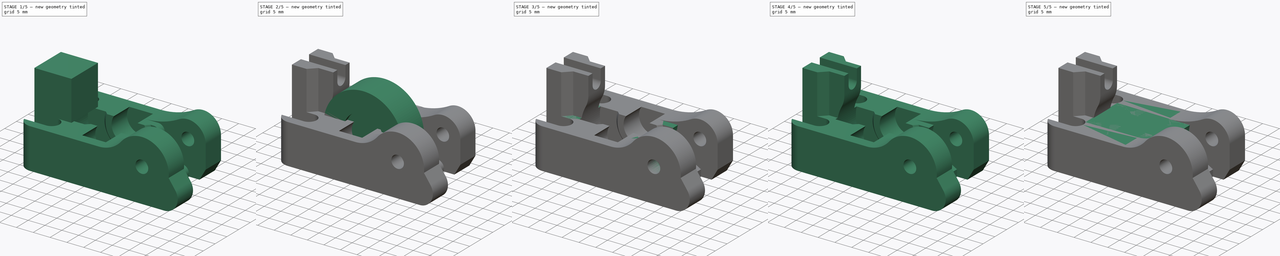
[diagram: build sequence overview — one tinted view per stage of 5, left to right]
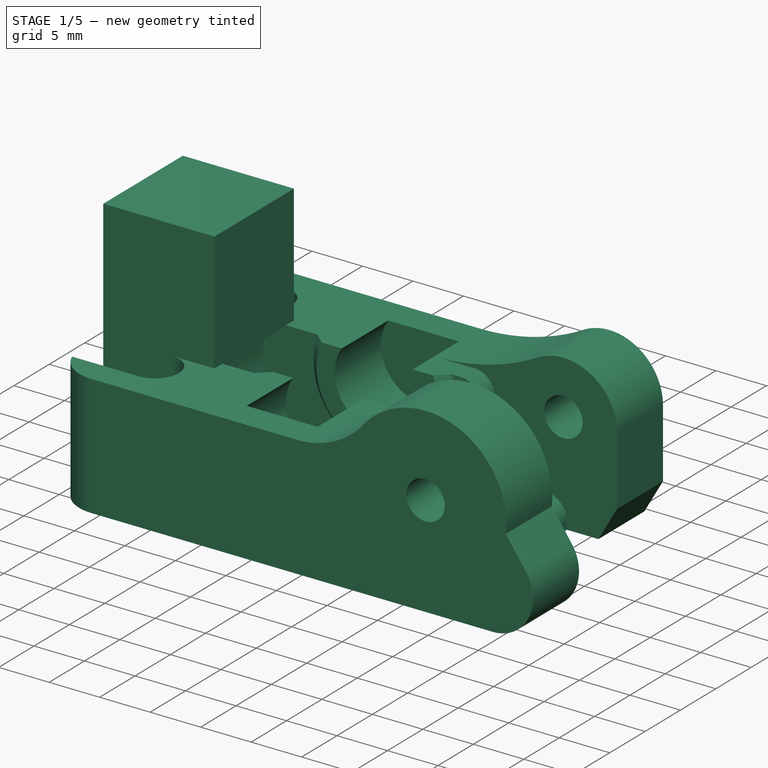
[diagram: stage 1 of 5 — iso view after this stage's code; geometry added in this stage tinted green]
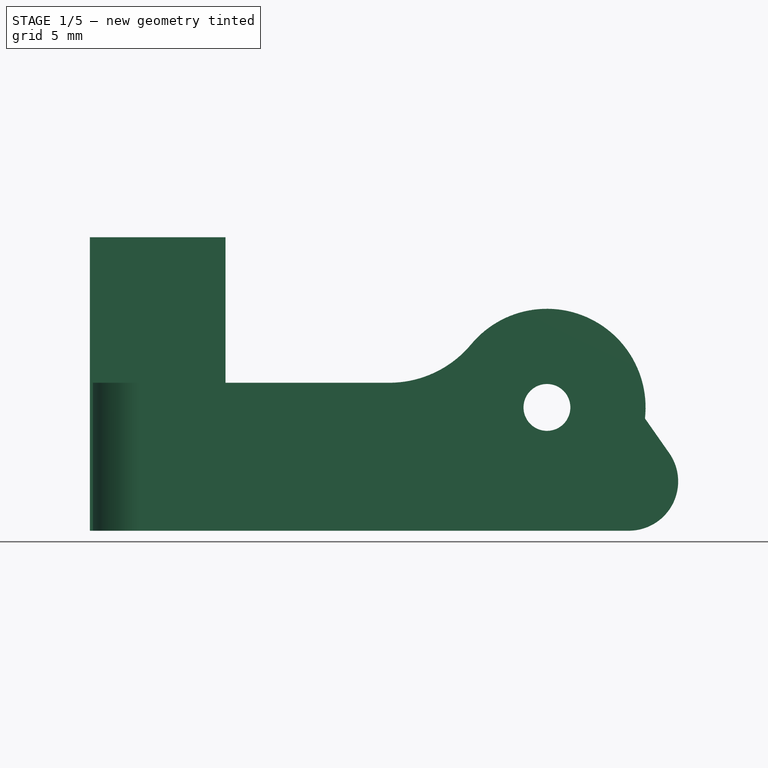
[diagram: stage 1 of 5 — front view after this stage's code; geometry added in this stage tinted green]
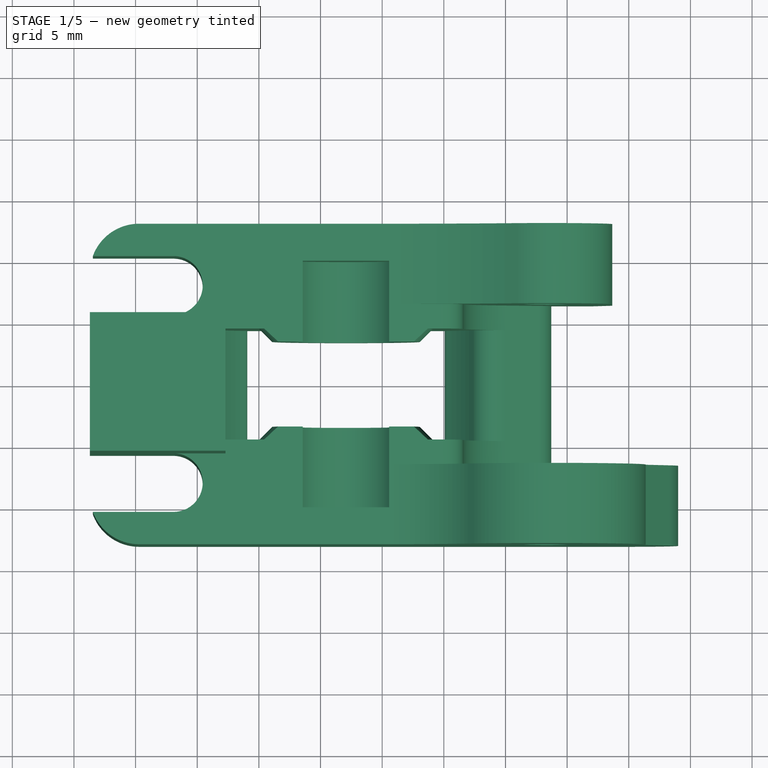
[diagram: stage 1 of 5 — top view after this stage's code; geometry added in this stage tinted green]
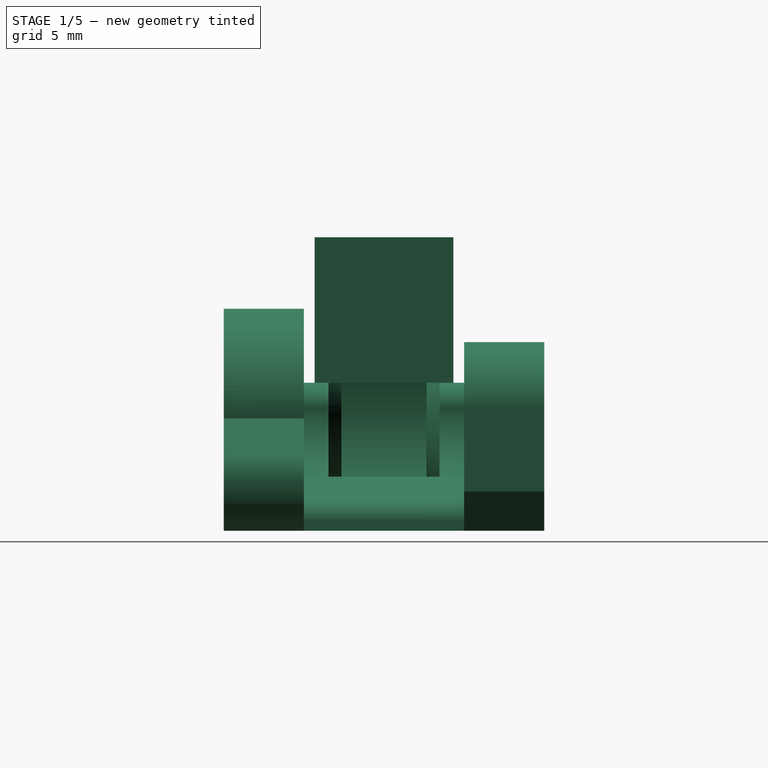
[diagram: stage 1 of 5 — right view after this stage's code; geometry added in this stage tinted green]
FCSTD DOCUMENT  (FreeCAD 0.16R6490 (Git))
Label: extruder_idler_block_v1.4
License: CC-BY 3.0
LicenseURL: http://creativecommons.org/licenses/by/3.0/
objects: Sketcher::SketchObject×18, PartDesign::Pad×11, PartDesign::Fillet×7, PartDesign::Pocket×6, Part::Feature×5, Part::Cut×3, PartDesign::Chamfer×2
note: 69 computed .brp shape members not serialized (recipe doc carries the construction recipe); baked Part::Feature solids carry a one-line shape summary decoded from their .brp

FEATURE [Part::Feature] Pad008001  label="Pad009"
  shape: bbox 45.07 x 26 x 18 mm, 48 faces (baked)
FEATURE [PartDesign::Fillet] Fillet003
  Base = -> Pad008001 [Edge41]
  Radius = 2
FEATURE [PartDesign::Fillet] Fillet004
  Base = -> Fillet003 [Edge18]
  Radius = 2
FEATURE [PartDesign::Fillet] Fillet005
  Base = -> Fillet004 [Edge45]
  Radius = 2
FEATURE [Sketcher::SketchObject] Sketch011
  ExternalGeometry = -> [Fillet005]
  Placement = pos=(0,-6.5,0) rot=(0,0.707107,0.707107;3.14159rad)
  Support = -> Fillet005 [Face14]
  sketch-geometry (13):
    g0: LineSegment [constr] StartX=-20.0379 StartY=12.9 StartZ=0 EndX=-16.6893 EndY=12.9 EndZ=0
    g1: LineSegment [constr] StartX=-16.6893 StartY=12.9 StartZ=0 EndX=-16.6893 EndY=7.1 EndZ=0
    g2: LineSegment StartX=-16.6893 StartY=7.1 StartZ=0 EndX=-20.0379 EndY=7.1 EndZ=0
    g3: LineSegment [constr] StartX=-20.0379 StartY=7.1 StartZ=0 EndX=-20.0379 EndY=12.9 EndZ=0
    g4: LineSegment StartX=-20.0379 StartY=12.9 StartZ=0 EndX=-21.7122 EndY=10 EndZ=0
    g5: LineSegment StartX=-21.7122 StartY=10 StartZ=0 EndX=-20.0379 EndY=7.1 EndZ=0
    g6: LineSegment StartX=-16.6893 StartY=12.9 StartZ=0 EndX=-15.015 EndY=10 EndZ=0
    g7: LineSegment StartX=-15.015 StartY=10 StartZ=0 EndX=-16.6893 EndY=7.1 EndZ=0
    g8: LineSegment [constr] StartX=-21.7122 StartY=10 StartZ=0 EndX=-15.015 EndY=10 EndZ=0
    g9: LineSegment [constr] StartX=-18.3636 StartY=10 StartZ=0 EndX=-18.3636 EndY=12.9 EndZ=0
    g10: LineSegment StartX=-20.0379 StartY=12.9 StartZ=0 EndX=-19.7492 EndY=13.4 EndZ=0
    g11: LineSegment StartX=-19.7492 StartY=13.4 StartZ=0 EndX=-16.9779 EndY=13.4 EndZ=0
    g12: LineSegment StartX=-16.9779 StartY=13.4 StartZ=0 EndX=-16.6893 EndY=12.9 EndZ=0
  constraints (36):
    c: Coincident(g0,g1)
    c: Coincident(g1,g2)
    c: Coincident(g2,g3)
    c: Coincident(g3,g0)
    c: Horizontal(g0)
    c: Horizontal(g2)
    c: Vertical(g1)
    c: Vertical(g3)
    c: Coincident(g4,g0)
    c: Coincident(g5,g4)
    c: Coincident(g5,g2)
    c: Coincident(g0,g6)
    c: Coincident(g6,g7)
    c: PointOnObject(g7,g2)
    c: Coincident(g8,g4)
    c: Coincident(g7,g1)
    c: Coincident(g8,g6)
    c: Horizontal(g8)
    c: Symmetric(g2,g0,g8)
    c: PointOnObject(g-3,g8)
    c: Angle(g5,g4) = 2.0944
    c: Parallel(g6,g5)
    c: Coincident(g9,g-3)
    c: PointOnObject(g9,g0)
    c: Vertical(g9)
    c: Symmetric(g0,g0,g9)
    c: DistanceY(g1) = -5.8
    c: Distance(g4,g1) = 5.8
    c: Coincident(g10,g0)
    c: Coincident(g11,g10)
    c: Horizontal(g11)
    c: Coincident(g12,g11)
    c: Coincident(g12,g0)
    c: Parallel(g10,g4)
    c: Parallel(g12,g6)
    c: DistanceY(g0,g10) = 0.5
FEATURE [PartDesign::Pocket] Pocket001002
  Length = 2.5
  Sketch = -> Sketch011
  Type = 0
FEATURE [Sketcher::SketchObject] Sketch012
  ExternalGeometry = -> [Pocket001002]
  Placement = pos=(0,0,12) rot=(0,0,1;0rad)
  Support = -> Pocket001002 [Face37]
  sketch-geometry (4):
    g0: LineSegment StartX=-18.71 StartY=5.625 StartZ=0 EndX=-7.71 EndY=5.625 EndZ=0
    g1: LineSegment StartX=-7.71 StartY=5.625 StartZ=0 EndX=-7.71 EndY=-5.625 EndZ=0
    g2: LineSegment StartX=-7.71 StartY=-5.625 StartZ=0 EndX=-18.71 EndY=-5.625 EndZ=0
    g3: LineSegment StartX=-18.71 StartY=-5.625 StartZ=0 EndX=-18.71 EndY=5.625 EndZ=0
  constraints (11):
    c: Coincident(g0,g1)
    c: Coincident(g1,g2)
    c: Coincident(g2,g3)
    c: Coincident(g3,g0)
    c: Horizontal(g0)
    c: Horizontal(g2)
    c: Vertical(g1)
    c: Vertical(g3)
    c: DistanceX(g0) = 11
    c: Coincident(g0,g-3)
    c: Coincident(g2,g-3)
FEATURE [PartDesign::Pad] Pad008002
  Length = 11.8
  Length2 = 100
  Sketch = -> Sketch012
  Type = 0
FEATURE [Part::Feature] Fillet006001  label="Fillet007"
  shape: bbox 45.07 x 26 x 23.8 mm, 71 faces (baked)
FEATURE [Sketcher::SketchObject] Sketch016
  ExternalGeometry = -> [Fillet006001]
  Placement = pos=(0,-13,0) rot=(1,0,0;1.5708rad)
  Support = -> Fillet006001 [Face44]
  sketch-geometry (5):
    g0: LineSegment StartX=26.3136 StartY=9.10691 StartZ=0 EndX=28.283 EndY=6.29431 EndZ=0
    g1: LineSegment StartX=21.8277 StartY=0 StartZ=0 EndX=25.0064 EndY=0 EndZ=0
    g2: ArcOfCircle CenterX=18.3636 CenterY=10 CenterZ=0 NormalX=0 NormalY=0 NormalZ=1 Radius=8 StartAngle=5.75958 EndAngle=6.17132
    g3: ArcOfCircle CenterX=25.0064 CenterY=4 CenterZ=0 NormalX=0 NormalY=0 NormalZ=1 Radius=4 StartAngle=4.71239 EndAngle=6.89405
    g4: LineSegment StartX=25.2918 StartY=5.99997 StartZ=0 EndX=21.8277 EndY=0 EndZ=0
  constraints (12):
    c: Coincident(g1,g-3)
    c: Horizontal(g1)
    c: Angle(g0,g1) = 0.959931
    c: Distance(g-4,g0) = 6
    c: Coincident(g2,g-4)
    c: Coincident(g2,g-4)
    c: Coincident(g2,g0)
    c: Tangent(g0,g3)
    c: Tangent(g1,g3)
    c: Radius(g3) = 4
    c: Coincident(g4,g2)
    c: Coincident(g4,g1)
FEATURE [PartDesign::Pad] Pad008003
  Length = 6.5
  Length2 = 100
  Reversed = true
  Sketch = -> Sketch016
  Type = 0
FEATURE [Part::Feature] Pad008003001  label="Pad008004"
  shape: bbox 47.72 x 26 x 23.8 mm, 72 faces (baked)
FEATURE [Sketcher::SketchObject] Sketch017
  ExternalGeometry = -> [Pad008003001]
  Placement = pos=(0,0,12) rot=(0,0,1;0rad)
  Support = -> Pad008003001 [Face4]
  sketch-geometry (4):
    g0: LineSegment StartX=-5.07307 StartY=3.8 StartZ=0 EndX=9.20307 EndY=3.8 EndZ=0
    g1: LineSegment StartX=9.20307 StartY=3.8 StartZ=0 EndX=9.20307 EndY=-3.8 EndZ=0
    g2: LineSegment StartX=9.20307 StartY=-3.8 StartZ=0 EndX=-5.07307 EndY=-3.8 EndZ=0
    g3: LineSegment StartX=-5.07307 StartY=-3.8 StartZ=0 EndX=-5.07307 EndY=3.8 EndZ=0
  constraints (12):
    c: Coincident(g0,g1)
    c: Coincident(g1,g2)
    c: Coincident(g2,g3)
    c: Coincident(g3,g0)
    c: Horizontal(g0)
    c: Horizontal(g2)
    c: Vertical(g1)
    c: Vertical(g3)
    c: DistanceY(g-8,g2) = -0.35
    c: DistanceY(g-7,g0) = 0.35
    c: DistanceX(g-3,g0) = -0.5
    c: DistanceX(g-6,g1) = 0.5
FEATURE [Part::Feature] Pad008003001001  label="Pad008005"
  shape: bbox 47.72 x 26 x 23.8 mm, 71 faces (baked)
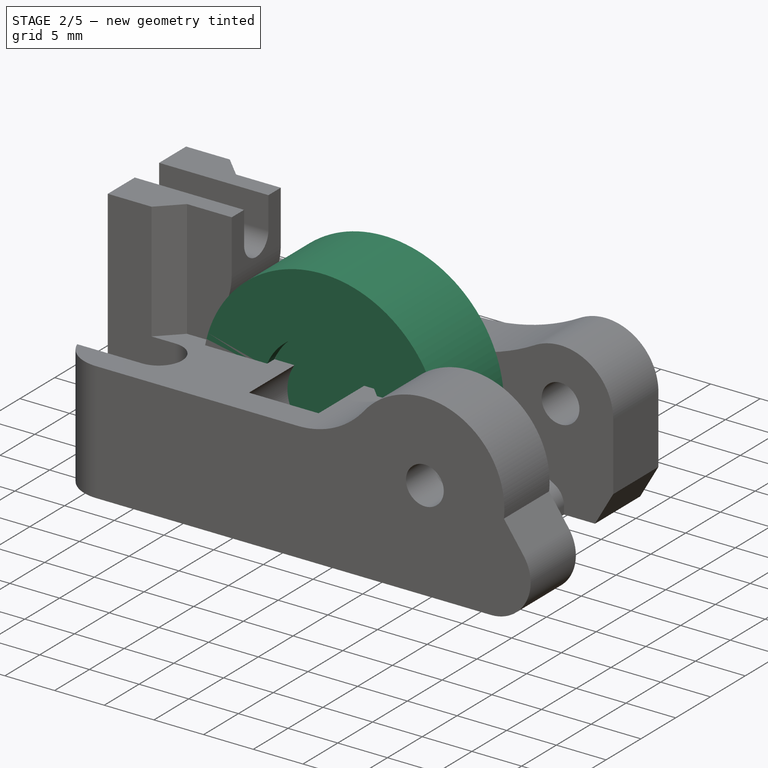
[diagram: stage 2 of 5 — iso view after this stage's code; geometry added in this stage tinted green]
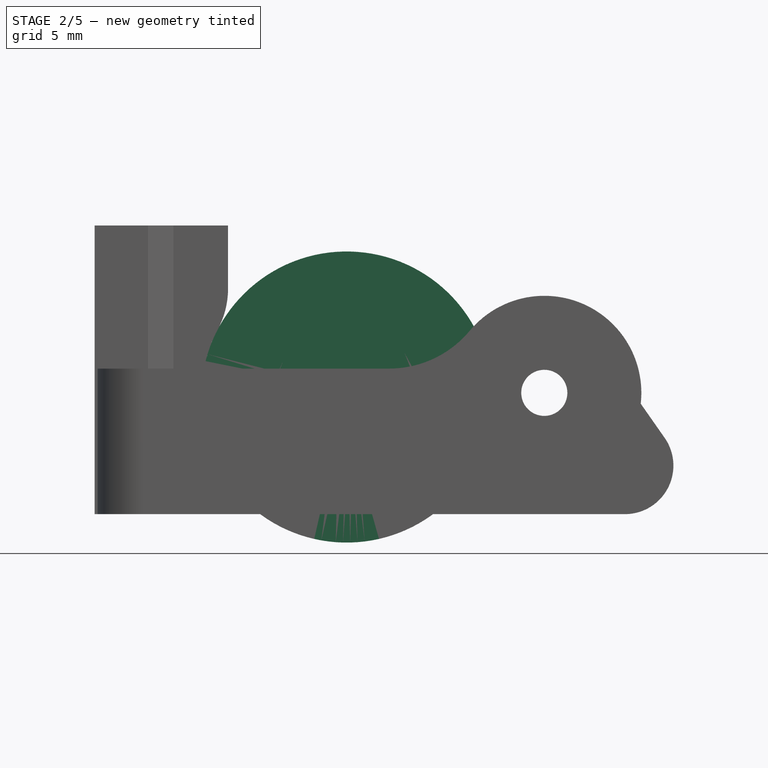
[diagram: stage 2 of 5 — front view after this stage's code; geometry added in this stage tinted green]
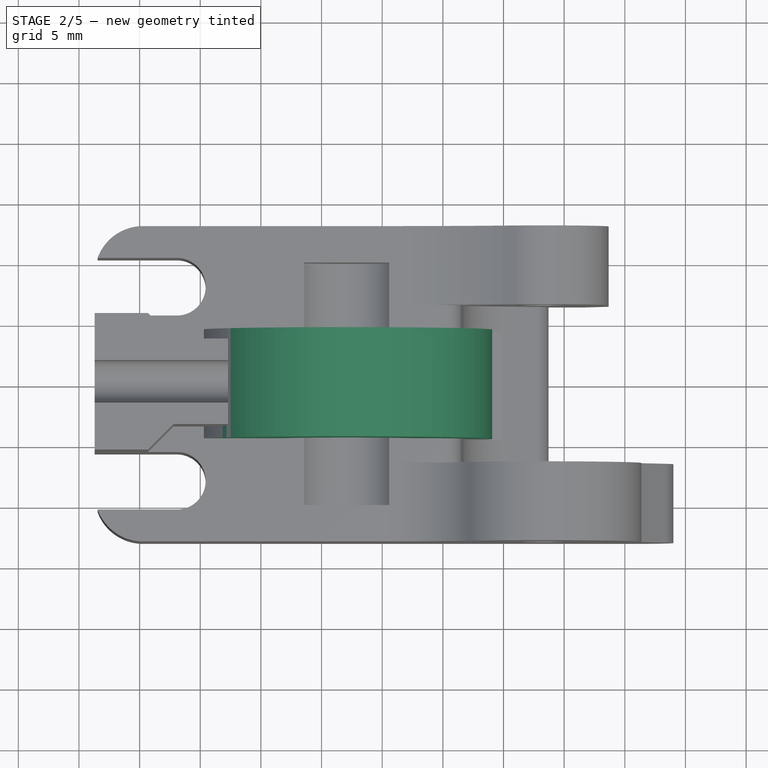
[diagram: stage 2 of 5 — top view after this stage's code; geometry added in this stage tinted green]
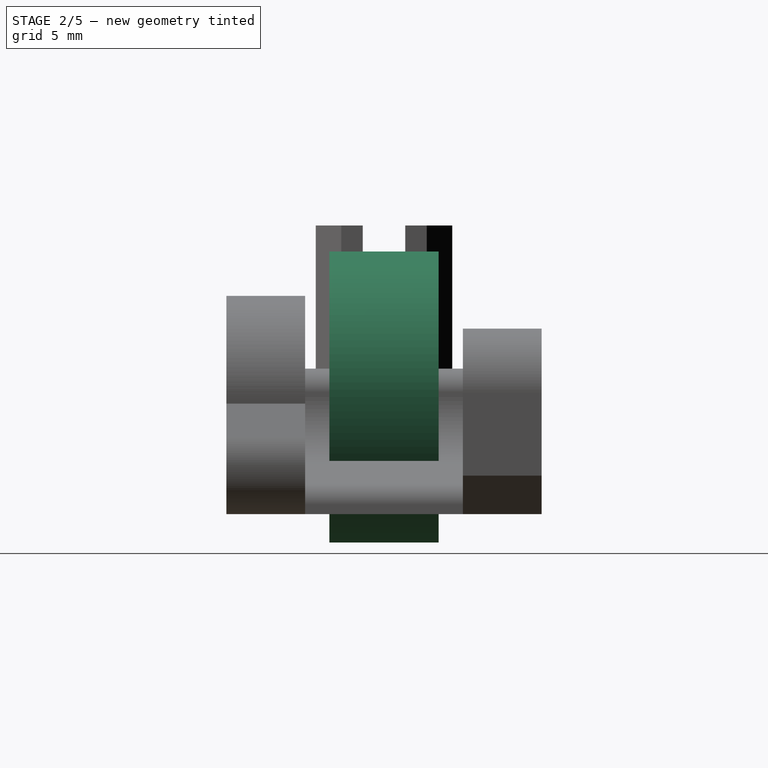
[diagram: stage 2 of 5 — right view after this stage's code; geometry added in this stage tinted green]
FEATURE [Sketcher::SketchObject] Sketch007
  Placement = pos=(0,0,0) rot=(1,0,0;1.5708rad)
  sketch-geometry (1):
    g0: Circle CenterX=2.065 CenterY=9.6553 CenterZ=0 NormalX=0 NormalY=0 NormalZ=1 Radius=6
  constraints (3):
    c: DistanceX(g-1,g0) = 2.065
    c: DistanceY(g0) = 9.6553
    c: Radius(g0) = 6
FEATURE [PartDesign::Pad] Pad005
  Length = 6.9
  Length2 = 100
  Midplane = true
  Placement = pos=(0,0,0) rot=(1,0,0;1.5708rad)
  Sketch = -> Sketch007
  Type = 0
FEATURE [Sketcher::SketchObject] Sketch008
  Placement = pos=(0,0,0) rot=(1,0,0;1.5708rad)
  sketch-geometry (2):
    g0: Circle CenterX=2.065 CenterY=9.6553 CenterZ=0 NormalX=0 NormalY=0 NormalZ=1 Radius=6
    g1: Circle CenterX=2.065 CenterY=9.6553 CenterZ=0 NormalX=0 NormalY=0 NormalZ=1 Radius=12
  constraints (5):
    c: DistanceX(g-1,g0) = 2.065
    c: DistanceY(g0) = 9.6553
    c: Radius(g0) = 6
    c: Coincident(g1,g0)
    c: Radius(g1) = 12
FEATURE [PartDesign::Pad] Pad006
  Length = 9
  Length2 = 100
  Midplane = true
  Placement = pos=(0,0,0) rot=(1,0,0;1.5708rad)
  Sketch = -> Sketch008
  Type = 0
FEATURE [Sketcher::SketchObject] Sketch013
  ExternalGeometry = -> [Pad008002]
  Placement = pos=(-18.71,0,0) rot=(0.57735,-0.57735,-0.57735;2.0944rad)
  Support = -> Pad008002 [Face57]
  sketch-geometry (5):
    g0: LineSegment StartX=-1.75 StartY=23.8 StartZ=0 EndX=1.75 EndY=23.8 EndZ=0
    g1: LineSegment StartX=1.75 StartY=23.8 StartZ=0 EndX=1.75 EndY=20.6 EndZ=0
    g2: LineSegment [constr] StartX=1.75 StartY=20.6 StartZ=0 EndX=-1.75 EndY=20.6 EndZ=0
    g3: LineSegment StartX=-1.75 StartY=20.6 StartZ=0 EndX=-1.75 EndY=23.8 EndZ=0
    g4: ArcOfCircle CenterX=0 CenterY=20.6 CenterZ=0 NormalX=0 NormalY=0 NormalZ=1 Radius=1.75 StartAngle=3.14159 EndAngle=6.28319
  constraints (15):
    c: Coincident(g0,g1)
    c: Coincident(g1,g2)
    c: Coincident(g2,g3)
    c: Coincident(g3,g0)
    c: Horizontal(g0)
    c: Horizontal(g2)
    c: Vertical(g1)
    c: Vertical(g3)
    c: Coincident(g4,g1)
    c: Coincident(g4,g2)
    c: DistanceX(g0) = 3.5
    c: DistanceY(g3) = 3.2
    c: PointOnObject(g0,g-3)
    c: Symmetric(g0,g0,g-2)
    c: PointOnObject(g4,g2)
FEATURE [PartDesign::Pocket] Pocket001003
  Length = 5
  Sketch = -> Sketch013
  Type = 1
FEATURE [Sketcher::SketchObject] Sketch014
  ExternalGeometry = -> [Pocket001003]
  Placement = pos=(0,0,23.8) rot=(0,0,1;0rad)
  Support = -> Pocket001003 [Face67]
  sketch-geometry (12):
    g0: LineSegment StartX=-7.71 StartY=5.625 StartZ=0 EndX=-12.21 EndY=5.625 EndZ=0
    g1: LineSegment [constr] StartX=-12.21 StartY=5.625 StartZ=0 EndX=-12.21 EndY=3.525 EndZ=0
    g2: LineSegment StartX=-12.21 StartY=3.525 StartZ=0 EndX=-7.71 EndY=3.525 EndZ=0
    g3: LineSegment StartX=-7.71 StartY=3.525 StartZ=0 EndX=-7.71 EndY=5.625 EndZ=0
    g4: LineSegment StartX=-7.71 StartY=-5.625 StartZ=0 EndX=-12.21 EndY=-5.625 EndZ=0
    g5: LineSegment [constr] StartX=-12.21 StartY=-5.625 StartZ=0 EndX=-12.21 EndY=-3.525 EndZ=0
    g6: LineSegment StartX=-12.21 StartY=-3.525 StartZ=0 EndX=-7.71 EndY=-3.525 EndZ=0
    g7: LineSegment StartX=-7.71 StartY=-3.525 StartZ=0 EndX=-7.71 EndY=-5.625 EndZ=0
    g8: LineSegment StartX=-12.21 StartY=3.525 StartZ=0 EndX=-14.31 EndY=5.625 EndZ=0
    g9: LineSegment StartX=-14.31 StartY=5.625 StartZ=0 EndX=-12.21 EndY=5.625 EndZ=0
    g10: LineSegment StartX=-12.21 StartY=-3.525 StartZ=0 EndX=-14.31 EndY=-5.625 EndZ=0
    g11: LineSegment StartX=-14.31 StartY=-5.625 StartZ=0 EndX=-12.21 EndY=-5.625 EndZ=0
  constraints (32):
    c: Coincident(g0,g1)
    c: Coincident(g1,g2)
    c: Coincident(g2,g3)
    c: Coincident(g3,g0)
    c: Horizontal(g0)
    c: Horizontal(g2)
    c: Vertical(g1)
    c: Vertical(g3)
    c: Coincident(g0,g-3)
    c: Coincident(g4,g5)
    c: Coincident(g5,g6)
    c: Coincident(g6,g7)
    c: Coincident(g7,g4)
    c: Horizontal(g4)
    c: Horizontal(g6)
    c: Vertical(g5)
    c: Vertical(g7)
    c: Coincident(g4,g-4)
    c: PointOnObject(g1,g5)
    c: Coincident(g8,g1)
    c: Coincident(g9,g8)
    c: Coincident(g9,g0)
    c: Horizontal(g9)
    c: Angle(g1,g8) = 0.785398
    c: Coincident(g10,g5)
    c: Coincident(g11,g10)
    c: Coincident(g11,g4)
    c: Horizontal(g11)
    c: Angle(g10,g5) = 0.785398
    c: DistanceX(g0,g-5) = -6.5
    c: DistanceY(g1) = -2.1
    c: DistanceY(g5) = 2.1
FEATURE [PartDesign::Pocket] Pocket001004
  Length = 11.8
  Sketch = -> Sketch014
  Type = 0
FEATURE [Sketcher::SketchObject] Sketch015
  ExternalGeometry = -> [Pocket001004]
  Placement = pos=(0,-3.525,0) rot=(1,0,0;1.5708rad)
  Support = -> Pocket001004 [Face70]
  sketch-geometry (4):
    g0: ArcOfCircle [constr] CenterX=2.065 CenterY=9.6553 CenterZ=0 NormalX=0 NormalY=0 NormalZ=1 Radius=12 StartAngle=2.52281 EndAngle=3.96347
    g1: LineSegment StartX=-7.71 StartY=16.6159 StartZ=0 EndX=-7.71 EndY=12 EndZ=0
    g2: LineSegment StartX=-9.7037 StartY=12 StartZ=0 EndX=-7.71 EndY=12 EndZ=0
    g3: ArcOfCircle CenterX=2.065 CenterY=9.6553 CenterZ=0 NormalX=0 NormalY=0 NormalZ=1 Radius=12 StartAngle=2.52281 EndAngle=2.94494
  constraints (12):
    c: Coincident(g0,g-3)
    c: PointOnObject(g-5,g0)
    c: Radius(g0) = 12
    c: Vertical(g1)
    c: Coincident(g0,g1)
    c: Coincident(g2,g-5)
    c: Coincident(g2,g1)
    c: Horizontal(g2)
    c: PointOnObject(g-6,g1)
    c: Coincident(g3,g0)
    c: Coincident(g3,g2)
    c: Coincident(g3,g0)
FEATURE [PartDesign::Pocket] Pocket001005
  Length = 8
  Sketch = -> Sketch015
  Type = 0
FEATURE [PartDesign::Fillet] Fillet006
  Base = -> Pocket001005 [Edge208]
  Radius = 7
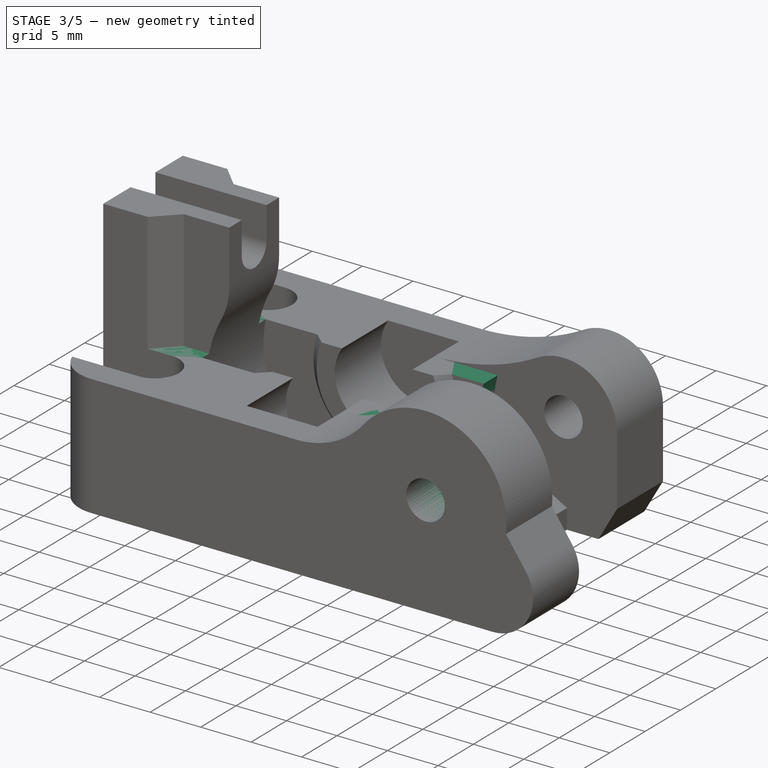
[diagram: stage 3 of 5 — iso view after this stage's code; geometry added in this stage tinted green]
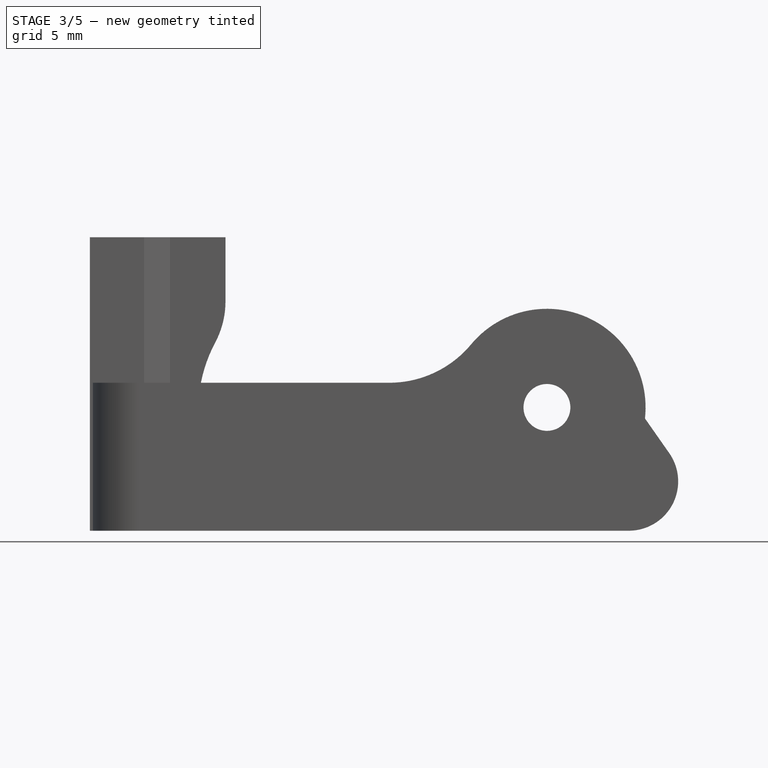
[diagram: stage 3 of 5 — front view after this stage's code; geometry added in this stage tinted green]
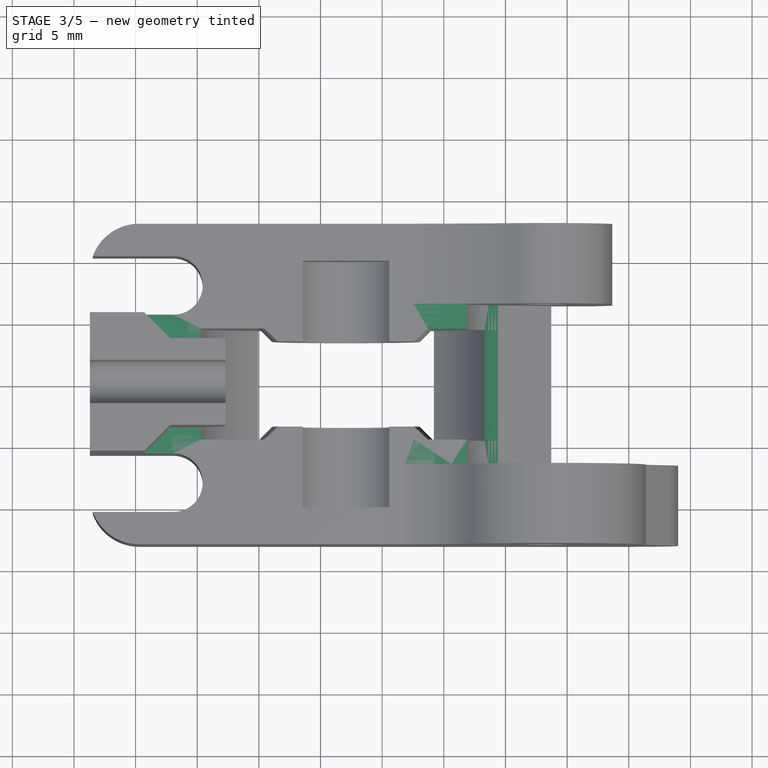
[diagram: stage 3 of 5 — top view after this stage's code; geometry added in this stage tinted green]
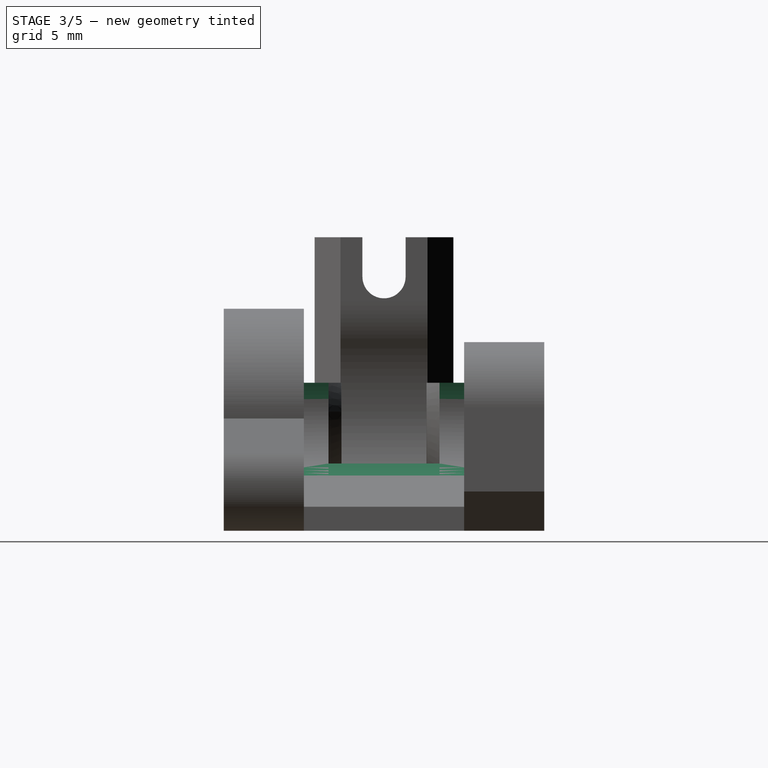
[diagram: stage 3 of 5 — right view after this stage's code; geometry added in this stage tinted green]
FEATURE [Part::Feature] Pocket001001  label="Pocket002"
  shape: bbox 45.07 x 26 x 18 mm, 25 faces (baked)
FEATURE [Sketcher::SketchObject] Sketch006
  Placement = pos=(0,0,0) rot=(1,0,0;1.5708rad)
  sketch-geometry (1):
    g0: Circle CenterX=2.065 CenterY=9.6553 CenterZ=0 NormalX=0 NormalY=0 NormalZ=1 Radius=4.2155
  constraints (3):
    c: Radius(g0) = 4.2155
    c: DistanceX(g-1,g0) = 2.065
    c: DistanceY(g0) = 9.6553
FEATURE [PartDesign::Pad] Pad004
  Length = 20
  Length2 = 100
  Midplane = true
  Placement = pos=(0,0,0) rot=(1,0,0;1.5708rad)
  Sketch = -> Sketch006
  Type = 0
FEATURE [Part::Cut] Cut
  Base = -> Pocket001001
  Tool = -> Pad004
FEATURE [Part::Cut] Cut001
  Base = -> Cut
  Tool = -> Pad005
FEATURE [Part::Cut] Cut002
  Base = -> Cut001
  Tool = -> Pad006
FEATURE [PartDesign::Chamfer] Chamfer
  Base = -> Cut002 [Edge91]
  Size = 1.04
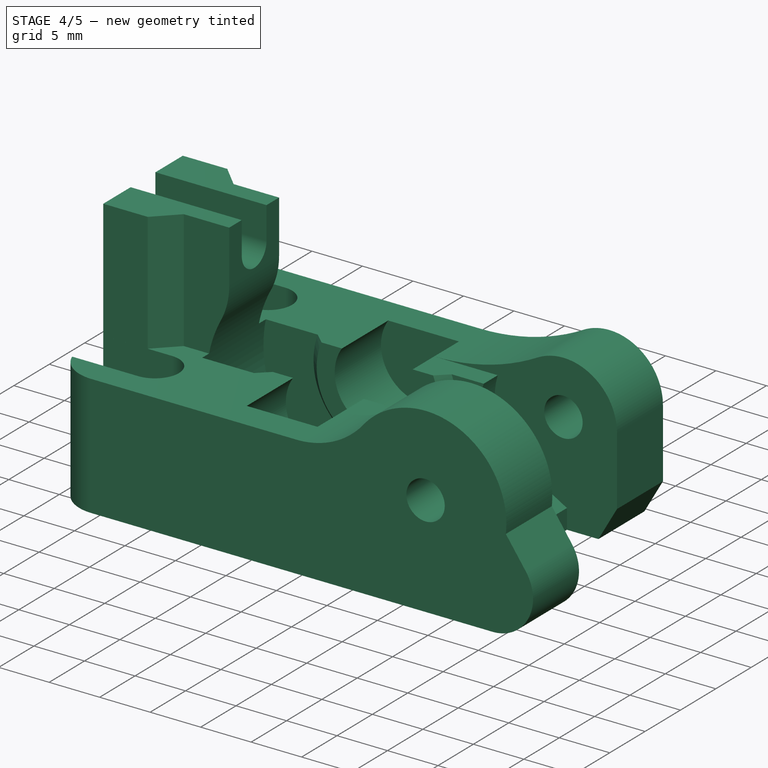
[diagram: stage 4 of 5 — iso view after this stage's code; geometry added in this stage tinted green]
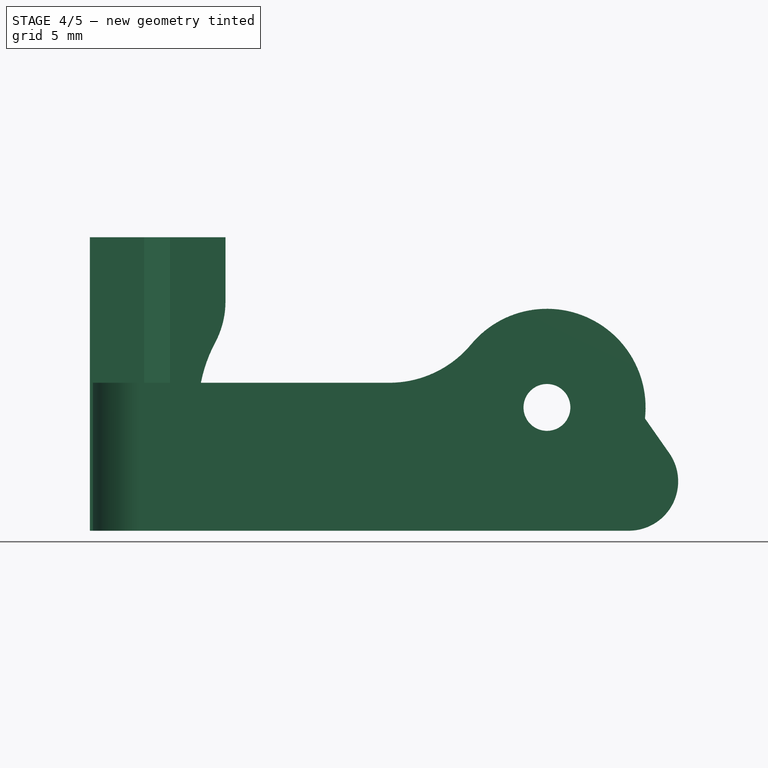
[diagram: stage 4 of 5 — front view after this stage's code; geometry added in this stage tinted green]
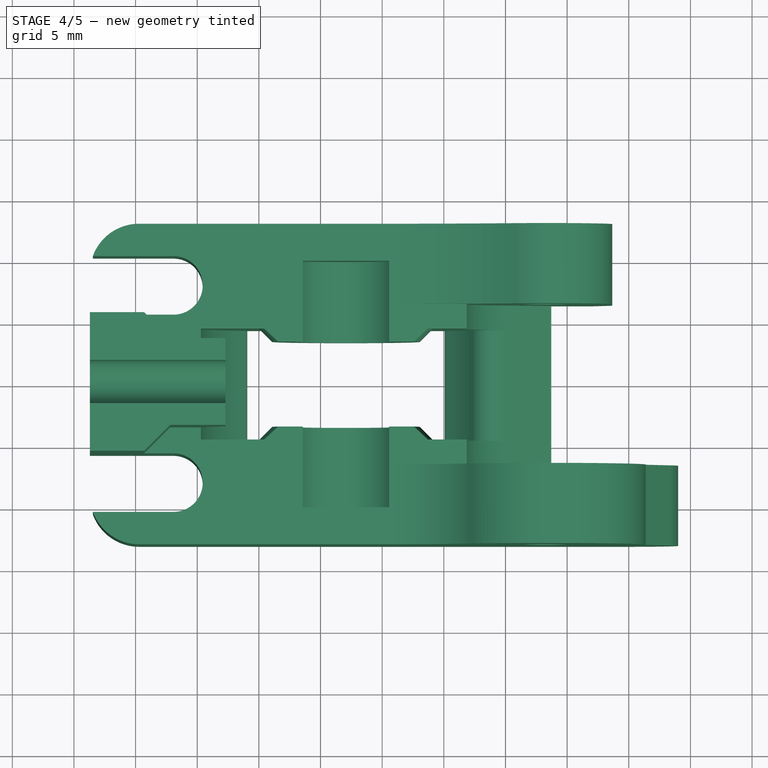
[diagram: stage 4 of 5 — top view after this stage's code; geometry added in this stage tinted green]
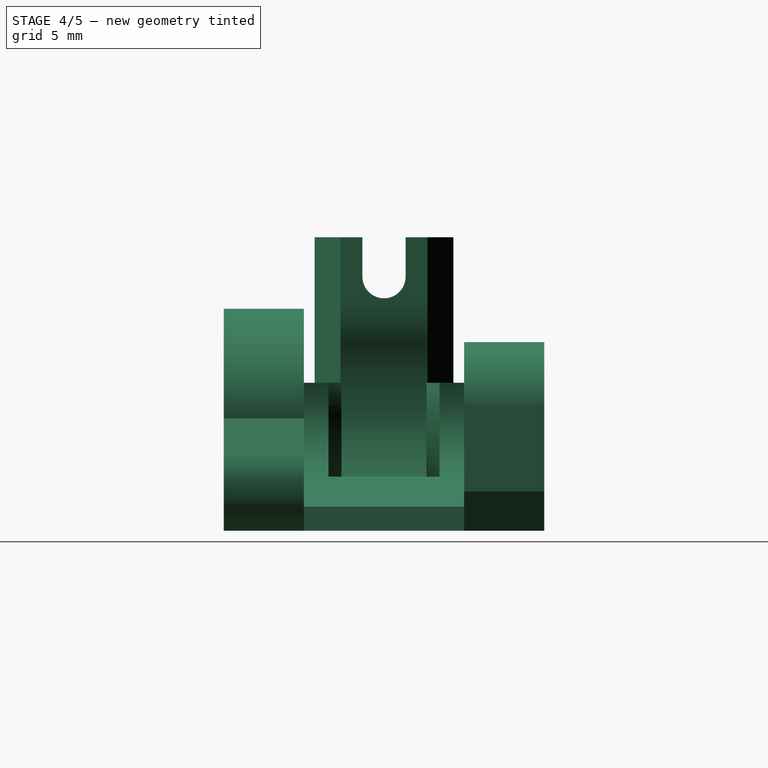
[diagram: stage 4 of 5 — right view after this stage's code; geometry added in this stage tinted green]
FEATURE [PartDesign::Chamfer] Chamfer001
  Base = -> Chamfer [Edge96]
  Size = 1.04
FEATURE [PartDesign::Fillet] Fillet
  Base = -> Chamfer001 [Edge76]
  Radius = 1.9
FEATURE [PartDesign::Fillet] Fillet001
  Base = -> Fillet [Edge16]
  Radius = 0.5
FEATURE [PartDesign::Fillet] Fillet002
  Base = -> Fillet001 [Edge55]
  Radius = 0.5
FEATURE [Sketcher::SketchObject] Sketch009
  ExternalGeometry = -> [Fillet002]
  Placement = pos=(0,-13,0) rot=(1,0,0;1.5708rad)
  Support = -> Fillet002 [Face25]
  sketch-geometry (3):
    g0: ArcOfCircle CenterX=5.56825 CenterY=20.6434 CenterZ=0 NormalX=0 NormalY=0 NormalZ=1 Radius=8.6434 StartAngle=4.71239 EndAngle=5.58934
    g1: LineSegment StartX=5.56826 StartY=12 StartZ=0 EndX=10.6176 EndY=12 EndZ=0
    g2: LineSegment StartX=12.2132 StartY=15.116 StartZ=0 EndX=10.6176 EndY=12 EndZ=0
  constraints (7):
    c: Coincident(g0,g-3)
    c: Tangent(g0,g-4)
    c: Tangent(g0,g-5)
    c: Coincident(g1,g0)
    c: Coincident(g2,g0)
    c: Coincident(g2,g1)
    c: Coincident(g1,g-5)
FEATURE [PartDesign::Pad] Pad007
  Length = 6.5
  Length2 = 100
  Reversed = true
  Sketch = -> Sketch009
  Type = 0
FEATURE [Sketcher::SketchObject] Sketch010
  ExternalGeometry = -> [Pad007]
  Placement = pos=(0,13,0) rot=(0,0.707107,0.707107;3.14159rad)
  Support = -> Pad007 [Face14]
  sketch-geometry (3):
    g0: ArcOfCircle CenterX=-5.56825 CenterY=33.1562 CenterZ=0 NormalX=0 NormalY=0 NormalZ=1 Radius=21.1562 StartAngle=4.20758 EndAngle=4.71239
    g1: LineSegment StartX=-15.8003 StartY=14.6389 StartZ=0 EndX=-13.4554 EndY=12 EndZ=0
    g2: LineSegment StartX=-13.4554 StartY=12 StartZ=0 EndX=-5.56826 EndY=12 EndZ=0
  constraints (8):
    c: PointOnObject(g0,g-4)
    c: Coincident(g0,g-3)
    c: Tangent(g0,g-5)
    c: Tangent(g0,g-4)
    c: Coincident(g1,g-5)
    c: Coincident(g1,g2)
    c: Coincident(g1,g0)
    c: Coincident(g2,g0)
FEATURE [PartDesign::Pad] Pad008
  Length = 6.5
  Length2 = 100
  Reversed = true
  Sketch = -> Sketch010
  Type = 0
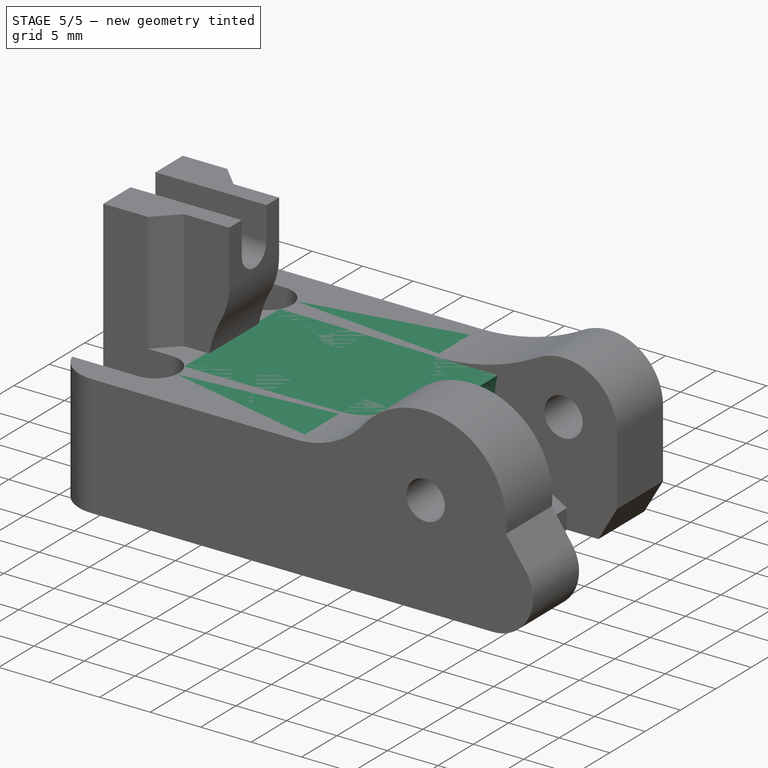
[diagram: stage 5 of 5 — iso view after this stage's code; geometry added in this stage tinted green]
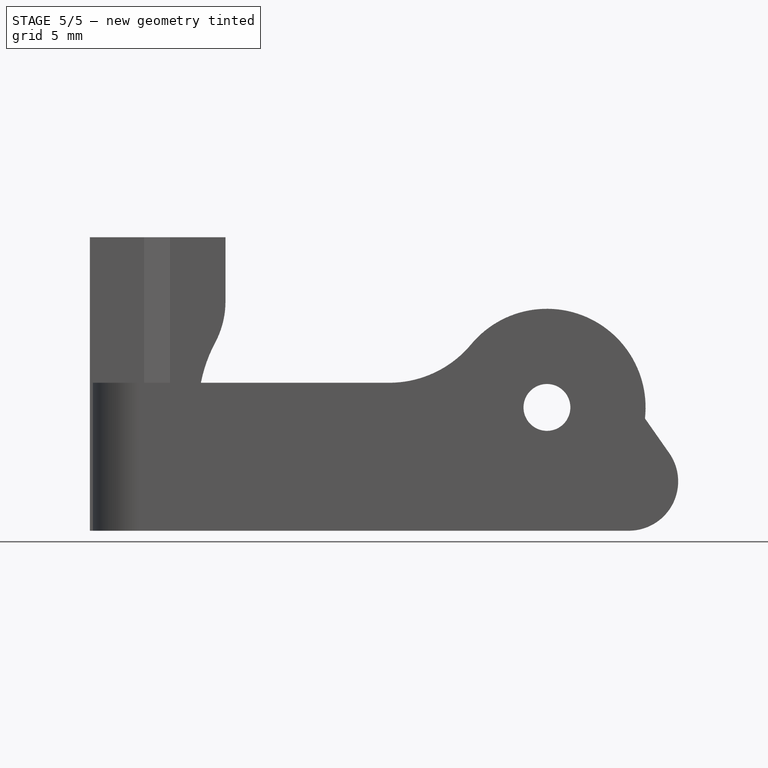
[diagram: stage 5 of 5 — front view after this stage's code; geometry added in this stage tinted green]
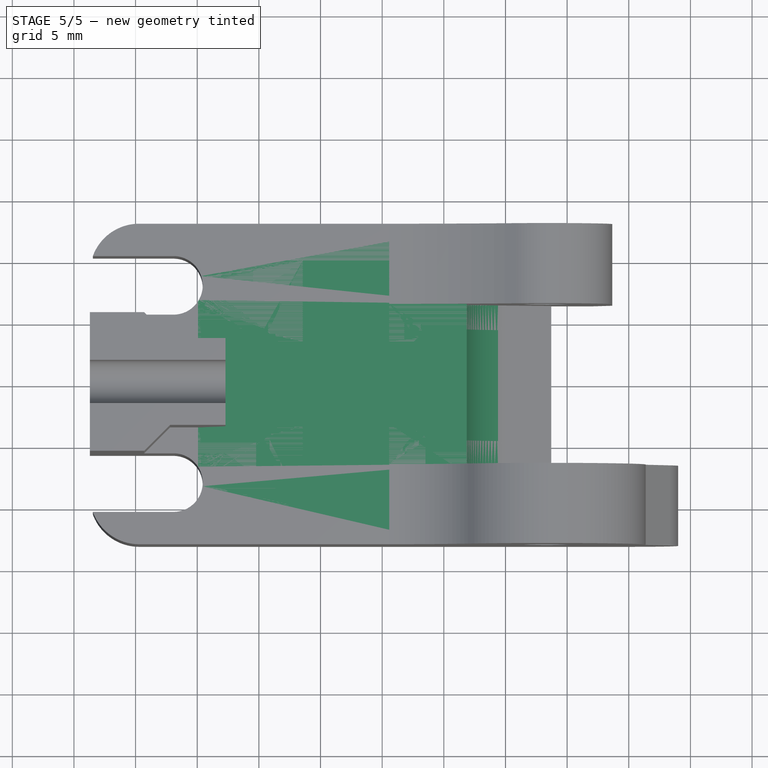
[diagram: stage 5 of 5 — top view after this stage's code; geometry added in this stage tinted green]
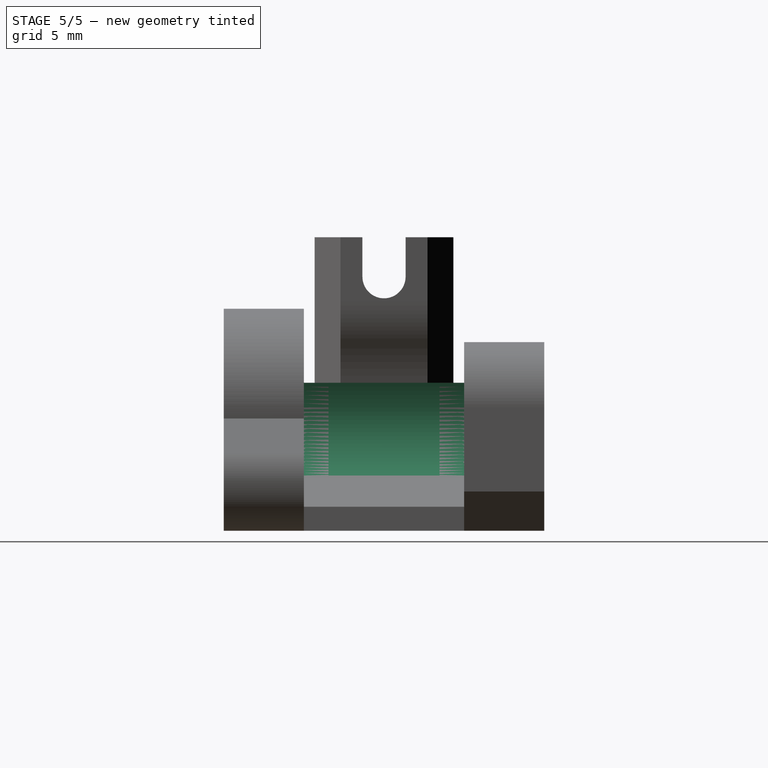
[diagram: stage 5 of 5 — right view after this stage's code; geometry added in this stage tinted green]
FEATURE [Sketcher::SketchObject] Sketch
  sketch-geometry (17):
    g0: LineSegment [constr] StartX=-18.71 StartY=13 StartZ=0 EndX=18.71 EndY=13 EndZ=0
    g1: LineSegment StartX=18.71 StartY=13 StartZ=0 EndX=18.71 EndY=-13 EndZ=0
    g2: LineSegment [constr] StartX=18.71 StartY=-13 StartZ=0 EndX=-18.71 EndY=-13 EndZ=0
    g3: LineSegment [constr] StartX=-18.71 StartY=-13 StartZ=0 EndX=-18.71 EndY=13 EndZ=0
    g4: LineSegment StartX=-18.71 StartY=5.625 StartZ=0 EndX=-11.93 EndY=5.625 EndZ=0
    g5: LineSegment StartX=-11.93 StartY=-5.625 StartZ=0 EndX=-18.71 EndY=-5.625 EndZ=0
    g6: LineSegment StartX=-18.71 StartY=-5.625 StartZ=0 EndX=-18.71 EndY=5.625 EndZ=0
    g7: LineSegment StartX=-11.93 StartY=-10.375 StartZ=0 EndX=-18.4662 EndY=-10.375 EndZ=0
    g8: LineSegment StartX=-11.93 StartY=10.375 StartZ=0 EndX=-18.4662 EndY=10.375 EndZ=0
    g9: LineSegment [constr] StartX=-11.93 StartY=10.375 StartZ=0 EndX=-11.93 EndY=5.625 EndZ=0
    g10: LineSegment [constr] StartX=-11.93 StartY=-5.625 StartZ=0 EndX=-11.93 EndY=-10.375 EndZ=0
    g11: ArcOfCircle CenterX=-11.93 CenterY=8 CenterZ=0 NormalX=0 NormalY=0 NormalZ=1 Radius=2.375 StartAngle=4.71239 EndAngle=7.85398
    g12: ArcOfCircle CenterX=-11.93 CenterY=-8 CenterZ=0 NormalX=0 NormalY=0 NormalZ=1 Radius=2.375 StartAngle=4.71239 EndAngle=7.85398
    g13: ArcOfCircle CenterX=-14.71 CenterY=-9 CenterZ=0 NormalX=0 NormalY=0 NormalZ=1 Radius=4 StartAngle=3.4925 EndAngle=4.71239
    g14: ArcOfCircle CenterX=-14.71 CenterY=9 CenterZ=0 NormalX=0 NormalY=0 NormalZ=1 Radius=4 StartAngle=1.5708 EndAngle=2.79069
    g15: LineSegment StartX=-14.71 StartY=13 StartZ=0 EndX=18.71 EndY=13 EndZ=0
    g16: LineSegment StartX=-14.71 StartY=-13 StartZ=0 EndX=18.71 EndY=-13 EndZ=0
  constraints (52):
    c: Coincident(g0,g1)
    c: Coincident(g1,g2)
    c: Coincident(g2,g3)
    c: Coincident(g3,g0)
    c: Horizontal(g0)
    c: Horizontal(g2)
    c: Vertical(g1)
    c: Vertical(g3)
    c: Symmetric(g0,g1,g-1)
    c: Symmetric(g0,g0,g-2)
    c: DistanceY(g3) = 26
    c: DistanceX(g0) = 37.42
    c: PointOnObject(g13,g2)
    c: Coincident(g5,g6)
    c: Coincident(g6,g4)
    c: Horizontal(g4)
    c: Horizontal(g5)
    c: Vertical(g6)
    c: PointOnObject(g4,g3)
    c: Symmetric(g4,g5,g-1)
    c: DistanceY(g4,g5) = -11.25
    c: Horizontal(g7)
    c: Horizontal(g8)
    c: Coincident(g9,g8)
    c: Coincident(g9,g4)
    c: Vertical(g9)
    c: Coincident(g10,g5)
    c: Coincident(g10,g7)
    c: Vertical(g10)
    c: PointOnObject(g11,g9)
    c: Coincident(g11,g8)
    c: Coincident(g11,g4)
    c: PointOnObject(g12,g10)
    c: Coincident(g12,g5)
    c: Coincident(g12,g7)
    c: DistanceY(g10) = -4.75
    c: DistanceY(g9) = -4.75
    c: DistanceX(g4) = 6.78
    c: PointOnObject(g5,g9)
    c: Coincident(g13,g7)
    c: Tangent(g13,g2)
    c: Tangent(g13,g3)
    c: Radius(g13) = 4
    c: Coincident(g14,g8)
    c: PointOnObject(g14,g0)
    c: Tangent(g14,g0)
    c: Tangent(g14,g3)
    c: Radius(g14) = 4
    c: Coincident(g15,g14)
    c: Coincident(g15,g0)
    c: Coincident(g16,g13)
    c: Coincident(g16,g1)
FEATURE [PartDesign::Pad] Pad
  Length = 12
  Length2 = 100
  Sketch = -> Sketch
  Type = 0
FEATURE [Sketcher::SketchObject] Sketch001
  ExternalGeometry = -> [Pad]
  Placement = pos=(0,13,0) rot=(0,0.707107,0.707107;3.14159rad)
  Support = -> Pad [Face1]
  sketch-geometry (6):
    g0: Circle [constr] CenterX=-18.3636 CenterY=10 CenterZ=0 NormalX=0 NormalY=0 NormalZ=1 Radius=5.3
    g1: LineSegment [constr] StartX=-18.3636 StartY=10 StartZ=0 EndX=-18.71 EndY=0 EndZ=0
    g2: LineSegment [constr] StartX=-23.6636 StartY=10 StartZ=0 EndX=-23.6636 EndY=0 EndZ=0
    g3: LineSegment StartX=-22.9535 StartY=7.34999 StartZ=0 EndX=-18.71 EndY=0 EndZ=0
    g4: LineSegment StartX=-18.71 StartY=0 StartZ=0 EndX=-18.5471 EndY=4.70317 EndZ=0
    g5: ArcOfCircle CenterX=-18.3636 CenterY=10 CenterZ=0 NormalX=0 NormalY=0 NormalZ=1 Radius=5.3 StartAngle=4.67776 EndAngle=9.94838
  constraints (18):
    c: Radius(g0) = 5.3
    c: Coincident(g1,g0)
    c: Coincident(g1,g-3)
    c: PointOnObject(g2,g0)
    c: PointOnObject(g2,g-1)
    c: Vertical(g2)
    c: Tangent(g2,g0)
    c: DistanceY(g2) = -10
    c: PointOnObject(g3,g0)
    c: Coincident(g3,g1)
    c: Tangent(g3,g0)
    c: Angle(g-3,g3) = 0.523599
    c: Coincident(g4,g1)
    c: PointOnObject(g4,g0)
    c: PointOnObject(g4,g1)
    c: Coincident(g5,g0)
    c: Coincident(g5,g3)
    c: Coincident(g5,g4)
FEATURE [PartDesign::Pad] Pad001
  Length = 6.5
  Length2 = 100
  Reversed = true
  Sketch = -> Sketch001
  Type = 0
FEATURE [Sketcher::SketchObject] Sketch002
  ExternalGeometry = -> [Pad001]
  Placement = pos=(0,-13,0) rot=(1,0,0;1.5708rad)
  Support = -> Pad001 [Face1]
  sketch-geometry (6):
    g0: Circle [constr] CenterX=18.3636 CenterY=10 CenterZ=0 NormalX=0 NormalY=0 NormalZ=1 Radius=5.3
    g1: LineSegment [constr] StartX=22.9535 StartY=7.35 StartZ=0 EndX=18.71 EndY=0 EndZ=0
    g2: Circle [constr] CenterX=18.3636 CenterY=10 CenterZ=0 NormalX=0 NormalY=0 NormalZ=1 Radius=6.8
    g3: LineSegment StartX=25.1636 StartY=10 StartZ=0 EndX=25.1636 EndY=-1.77794 EndZ=0
    g4: LineSegment StartX=14.9636 StartY=4.11103 StartZ=0 EndX=25.1636 EndY=-1.77794 EndZ=0
    g5: ArcOfCircle CenterX=18.3636 CenterY=10 CenterZ=0 NormalX=0 NormalY=0 NormalZ=1 Radius=6.8 StartAngle=3.29146e-06 EndAngle=4.18879
  constraints (18):
    c: PointOnObject(g1,g0)
    c: Tangent(g1,g0)
    c: Coincident(g1,g-3)
    c: Angle(g1,g-3) = 0.523599
    c: Radius(g0) = 5.3
    c: Coincident(g2,g0)
    c: Radius(g2) = 6.8
    c: DistanceY(g-1,g0) = 10
    c: PointOnObject(g3,g2)
    c: Vertical(g3)
    c: Tangent(g3,g2)
    c: PointOnObject(g4,g2)
    c: Coincident(g4,g3)
    c: Tangent(g2,g4)
    c: Angle(g3,g4) = 1.0472
    c: Coincident(g5,g0)
    c: Coincident(g5,g4)
    c: Coincident(g5,g3)
FEATURE [PartDesign::Pocket] Pocket
  Length = 19.5
  Sketch = -> Sketch002
  Type = 0
FEATURE [Sketcher::SketchObject] Sketch003
  ExternalGeometry = -> [Pocket]
  Placement = pos=(0,-13,0) rot=(1,0,0;1.5708rad)
  Support = -> Pocket [Face3]
  sketch-geometry (4):
    g0: ArcOfCircle CenterX=18.3636 CenterY=10 CenterZ=0 NormalX=0 NormalY=0 NormalZ=1 Radius=8 StartAngle=5.75958 EndAngle=11.017
    g1: LineSegment StartX=25.2918 StartY=5.99997 StartZ=0 EndX=21.8277 EndY=0 EndZ=0
    g2: LineSegment StartX=18.71 StartY=0 StartZ=0 EndX=21.8277 EndY=0 EndZ=0
    g3: LineSegment StartX=18.5349 StartY=2.00183 StartZ=0 EndX=18.71 EndY=0 EndZ=0
  constraints (12):
    c: Radius(g0) = 8
    c: Coincident(g0,g-3)
    c: Coincident(g1,g0)
    c: PointOnObject(g1,g-1)
    c: Coincident(g2,g1)
    c: Horizontal(g2)
    c: Tangent(g1,g0)
    c: Angle(g1,g-1) = 2.0944
    c: Coincident(g0,g3)
    c: Coincident(g3,g2)
    c: Coincident(g2,g-4)
    c: Angle(g-4,g3) = 0.087266
FEATURE [PartDesign::Pad] Pad002
  Length = 6.5
  Length2 = 100
  Reversed = true
  Sketch = -> Sketch003
  Type = 0
FEATURE [Sketcher::SketchObject] Sketch004
  ExternalGeometry = -> [Pad002]
  Placement = pos=(0,13,0) rot=(0,0.707107,0.707107;3.14159rad)
  Support = -> Pad002 [Face25]
  sketch-geometry (4):
    g0: LineSegment StartX=-23.6636 StartY=10 StartZ=0 EndX=-23.6636 EndY=3.17987 EndZ=0
    g1: LineSegment StartX=-23.6636 StartY=3.17987 StartZ=0 EndX=-21.8277 EndY=0 EndZ=0
    g2: LineSegment StartX=-21.8277 StartY=0 StartZ=0 EndX=-18.71 EndY=0 EndZ=0
    g3: LineSegment StartX=-18.71 StartY=0 StartZ=0 EndX=-23.6636 EndY=10 EndZ=0
  constraints (11):
    c: PointOnObject(g0,g-3)
    c: PointOnObject(g0,g-4)
    c: Tangent(g0,g-3)
    c: Vertical(g0)
    c: Coincident(g0,g1)
    c: Coincident(g1,g-4)
    c: Coincident(g1,g2)
    c: Horizontal(g2)
    c: Coincident(g2,g3)
    c: Coincident(g2,g-5)
    c: Coincident(g3,g0)
FEATURE [PartDesign::Pad] Pad003
  Length = 6.5
  Length2 = 100
  Reversed = true
  Sketch = -> Sketch004
  Type = 0
FEATURE [Sketcher::SketchObject] Sketch005
  ExternalGeometry = -> [Pad003]
  Placement = pos=(0,13,0) rot=(0,0.707107,0.707107;3.14159rad)
  Support = -> Pad003 [Face31]
  sketch-geometry (1):
    g0: Circle CenterX=-18.3636 CenterY=10 CenterZ=0 NormalX=0 NormalY=0 NormalZ=1 Radius=1.9
  constraints (2):
    c: Coincident(g0,g-3)
    c: Radius(g0) = 1.9
FEATURE [PartDesign::Pocket] Pocket001
  Length = 5
  Sketch = -> Sketch005
  Type = 1
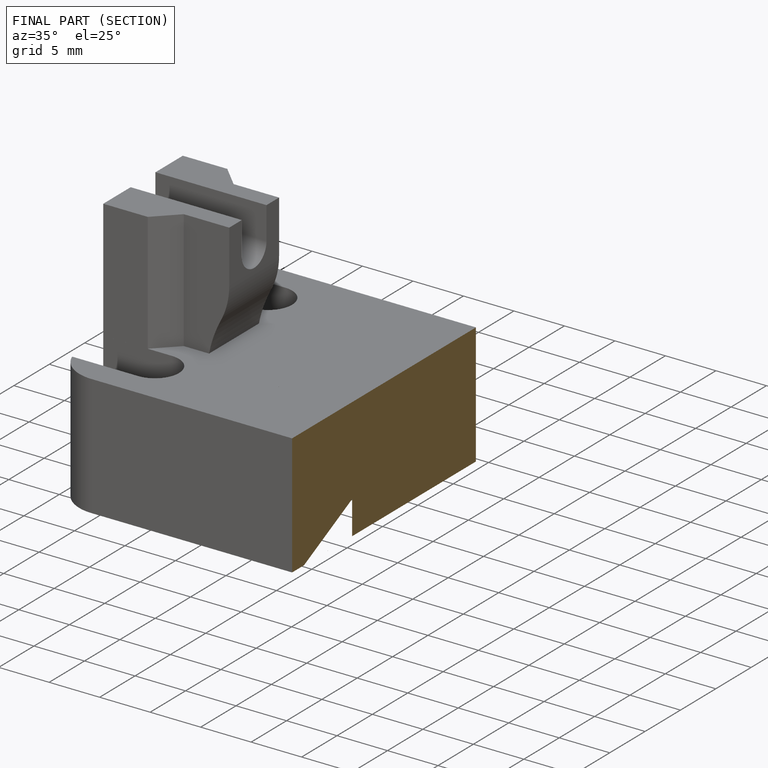
[diagram: finished part — half-section view (interior)]
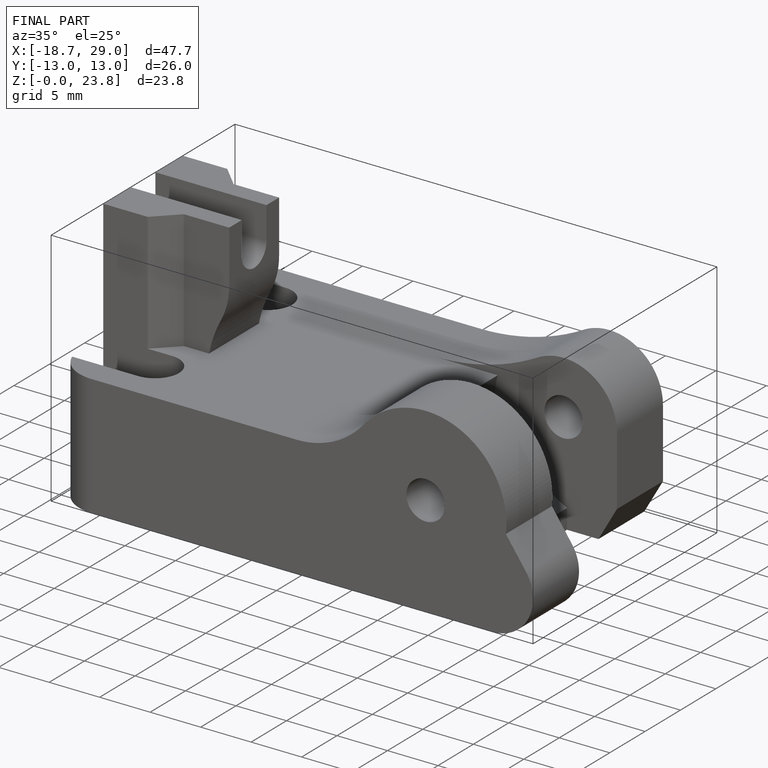
[diagram: finished part — iso view with bounding-box wireframe]
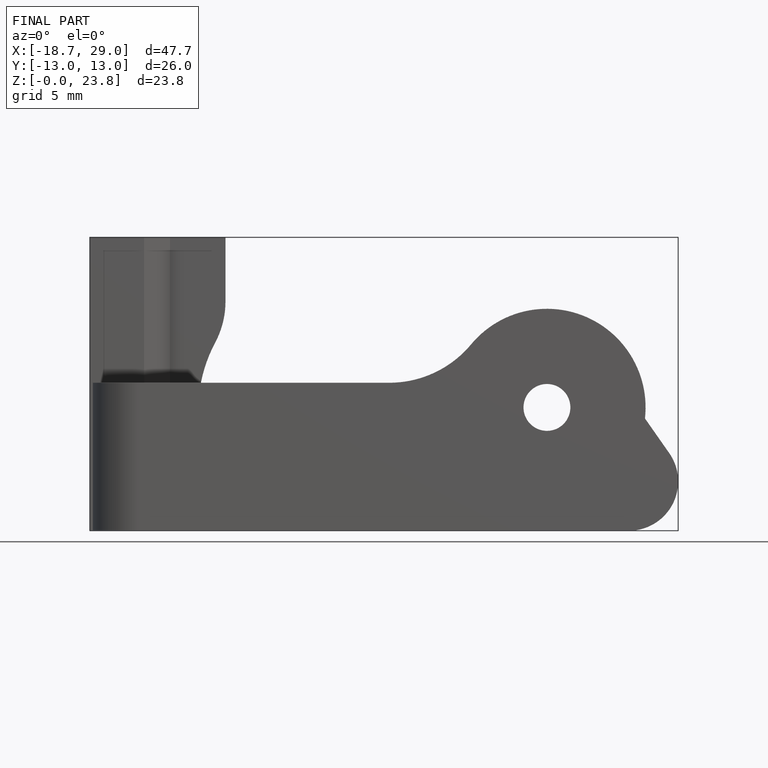
[diagram: finished part — front view with bounding-box wireframe]
